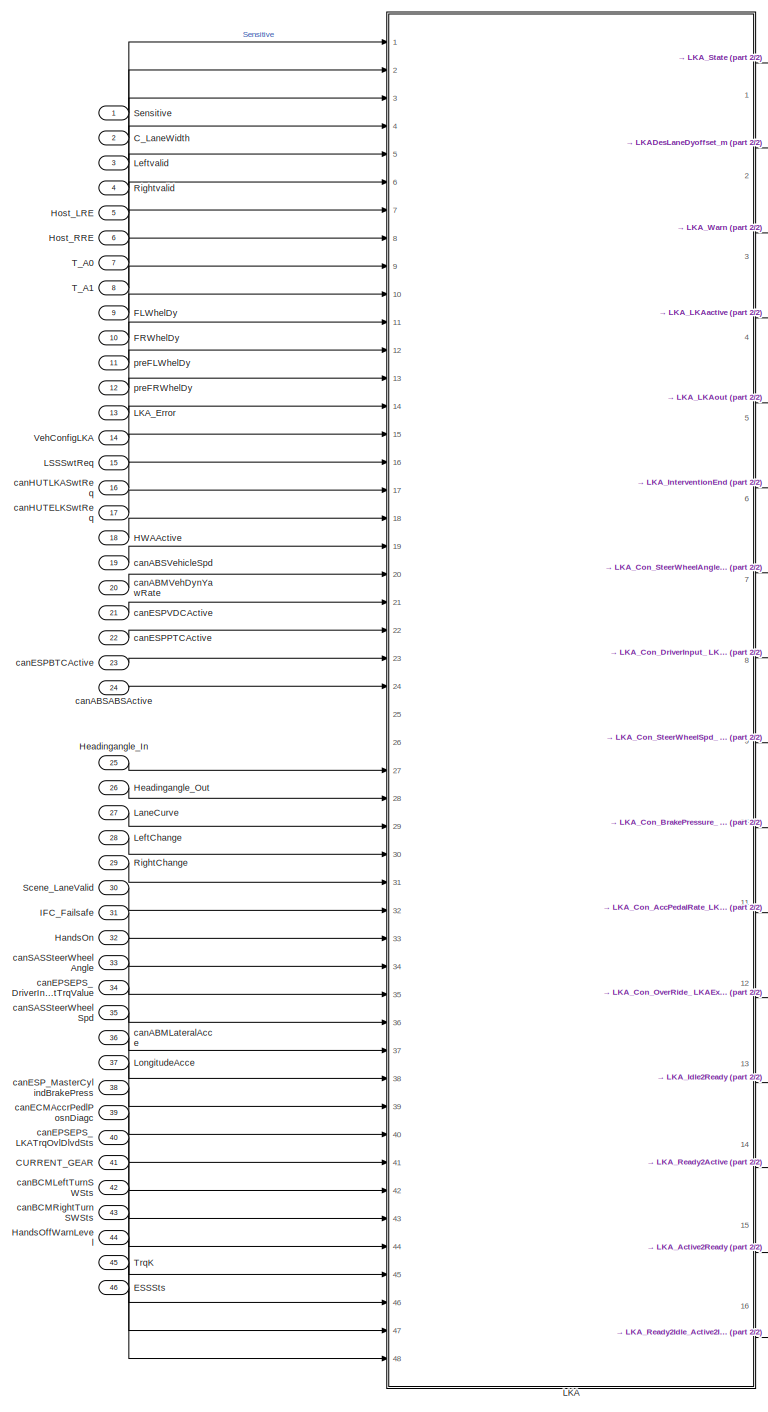
[diagram: root canvas - part 1/2, most of the canvas]
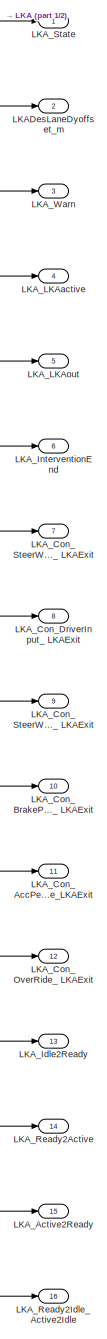
[diagram: root canvas - part 2/2, right side, full height]
MODEL slx_476f28d23ed4
KIND model
CONFIG AbsTol = auto
CONFIG EnableMultiTasking = off
CONFIG FixedStep = auto
CONFIG InitFcn = , if any(exist('dsmpb_private', 'file') ~= 0), dsmpb_private('dsmpb_mdlclblib', 'Init', bdroot); end,\n
CONFIG MaxStep = auto
CONFIG MinStep = auto
CONFIG PostLoadFcn = if any(exist('dsrtsu_mdlpostloadfcn', 'file') ~= 0), dsrtsu_mdlpostloadfcn('Execute', bdroot); end
CONFIG RelTol = 1e-3
CONFIG SampleTimeConstraint = Unconstrained
CONFIG SolverName = FixedStepAuto
CONFIG StartTime = 0.0
CONFIG StopTime = Inf
BLOCK [Inport] CURRENT_GEAR
  OutDataTypeStr = uint8
  Port = 41
BLOCK [Inport] C_LaneWidth
  OutDataTypeStr = single
  Port = 2
BLOCK [Inport] ESSSts
  OutDataTypeStr = uint8
  Port = 46
BLOCK [Inport] FLWhelDy
  OutDataTypeStr = single
  Port = 9
BLOCK [Inport] FRWhelDy
  OutDataTypeStr = single
  Port = 10
BLOCK [Inport] HWAActive
  OutDataTypeStr = boolean
  Port = 18
BLOCK [Inport] HandsOffWarnLevel
  OutDataTypeStr = uint8
  Port = 44
BLOCK [Inport] HandsOn
  OutDataTypeStr = boolean
  Port = 32
BLOCK [Inport] Headingangle_In
  OutDataTypeStr = boolean
  Port = 25
BLOCK [Inport] Headingangle_Out
  OutDataTypeStr = boolean
  Port = 26
BLOCK [Inport] Host_LRE
  OutDataTypeStr = boolean
  Port = 5
BLOCK [Inport] Host_RRE
  OutDataTypeStr = boolean
  Port = 6
BLOCK [Inport] IFC_Failsafe
  OutDataTypeStr = double
  Port = 31
BLOCK [SubSystem] LKA
  Ports = [48, 16]
  ReferencedSubsystem = PvtSubSys_VSM_LKA
  RequestExecContextInheritance = off
BLOCK [Outport] LKADesLaneDyoffset_m
  Port = 2
BLOCK [Outport] LKA_Active2Ready
  Port = 15
BLOCK [Outport] LKA_Con_AccPedalRate_LKAExit
  Port = 11
BLOCK [Outport] LKA_Con_BrakePressure_ LKAExit
  Port = 10
BLOCK [Outport] LKA_Con_DriverInput_ LKAExit
  Port = 8
BLOCK [Outport] LKA_Con_OverRide_ LKAExit
  Port = 12
BLOCK [Outport] LKA_Con_SteerWheelAngle_ LKAExit
  Port = 7
BLOCK [Outport] LKA_Con_SteerWheelSpd_ LKAExit
  Port = 9
BLOCK [Inport] LKA_Error
  OutDataTypeStr = boolean
  Port = 13
BLOCK [Outport] LKA_Idle2Ready
  Port = 13
BLOCK [Outport] LKA_InterventionEnd
  Port = 6
BLOCK [Outport] LKA_LKAactive
  Port = 4
BLOCK [Outport] LKA_LKAout
  Port = 5
BLOCK [Outport] LKA_Ready2Active
  Port = 14
BLOCK [Outport] LKA_Ready2Idle_Active2Idle
  Port = 16
BLOCK [Outport] LKA_State
BLOCK [Outport] LKA_Warn
  Port = 3
BLOCK [Inport] LSSSwtReq
  OutDataTypeStr = boolean
  Port = 15
BLOCK [Inport] LaneCurve
  OutDataTypeStr = single
  Port = 27
BLOCK [Inport] LeftChange
  OutDataTypeStr = boolean
  Port = 28
BLOCK [Inport] Leftvalid
  NameLocation = top
  OutDataTypeStr = boolean
  Port = 3
BLOCK [Inport] LongitudeAcce
  OutDataTypeStr = single
  Port = 37
BLOCK [Inport] RightChange
  NameLocation = right
  OutDataTypeStr = boolean
  Port = 29
BLOCK [Inport] Rightvalid
  OutDataTypeStr = boolean
  Port = 4
BLOCK [Inport] Scene_LaneValid
  OutDataTypeStr = single
  Port = 30
BLOCK [Inport] Sensitive
  OutDataTypeStr = uint8
BLOCK [Inport] T_A0
  OutDataTypeStr = single
  Port = 7
BLOCK [Inport] T_A1
  OutDataTypeStr = single
  Port = 8
BLOCK [Inport] TrqK
  OutDataTypeStr = single
  Port = 45
BLOCK [Inport] VehConfigLKA
  OutDataTypeStr = uint8
  Port = 14
BLOCK [Inport] canABMLateralAcce
  OutDataTypeStr = single
  Port = 36
BLOCK [Inport] canABMVehDynYawRate
  OutDataTypeStr = single
  Port = 20
BLOCK [Inport] canABSABSActive
  OutDataTypeStr = boolean
  Port = 24
BLOCK [Inport] canABSVehicleSpd
  OutDataTypeStr = single
  Port = 19
BLOCK [Inport] canBCMLeftTurnSWSts
  OutDataTypeStr = boolean
  Port = 42
BLOCK [Inport] canBCMRightTurnSWSts
  OutDataTypeStr = boolean
  Port = 43
BLOCK [Inport] canECMAccrPedlPosnDiagc
  OutDataTypeStr = single
  Port = 39
BLOCK [Inport] canEPSEPS_DriverInputTrqValue
  OutDataTypeStr = single
  Port = 34
BLOCK [Inport] canEPSEPS_LKATrqOvlDlvdSts
  OutDataTypeStr = uint8
  Port = 40
BLOCK [Inport] canESPBTCActive
  OutDataTypeStr = boolean
  Port = 23
BLOCK [Inport] canESPPTCActive
  OutDataTypeStr = boolean
  Port = 22
BLOCK [Inport] canESPVDCActive
  OutDataTypeStr = boolean
  Port = 21
BLOCK [Inport] canESP_MasterCylindBrakePress
  OutDataTypeStr = single
  Port = 38
BLOCK [Inport] canHUTELKSwtReq
  OutDataTypeStr = boolean
  Port = 17
BLOCK [Inport] canHUTLKASwtReq
  OutDataTypeStr = boolean
  Port = 16
BLOCK [Inport] canSASSteerWheelAngle
  OutDataTypeStr = single
  Port = 33
BLOCK [Inport] canSASSteerWheelSpd
  OutDataTypeStr = single
  Port = 35
BLOCK [Inport] preFLWhelDy
  OutDataTypeStr = single
  Port = 11
BLOCK [Inport] preFRWhelDy
  OutDataTypeStr = single
  Port = 12
LINE CURRENT_GEAR:1 -> LKA:43
LINE C_LaneWidth:1 -> LKA:2
LINE ESSSts:1 -> LKA:48
LINE FLWhelDy:1 -> LKA:9
LINE FRWhelDy:1 -> LKA:10
LINE HWAActive:1 -> LKA:18
LINE HandsOffWarnLevel:1 -> LKA:46
LINE HandsOn:1 -> LKA:34
LINE Headingangle_In:1 -> LKA:27
LINE Headingangle_Out:1 -> LKA:28
LINE Host_LRE:1 -> LKA:5
LINE Host_RRE:1 -> LKA:6
LINE IFC_Failsafe:1 -> LKA:33
LINE LKA:1 -> LKA_State:1
LINE LKA:10 -> LKA_Con_BrakePressure_ LKAExit:1
LINE LKA:11 -> LKA_Con_AccPedalRate_LKAExit:1
LINE LKA:12 -> LKA_Con_OverRide_ LKAExit:1
LINE LKA:13 -> LKA_Idle2Ready:1
LINE LKA:14 -> LKA_Ready2Active:1
LINE LKA:15 -> LKA_Active2Ready:1
LINE LKA:16 -> LKA_Ready2Idle_Active2Idle:1
LINE LKA:2 -> LKADesLaneDyoffset_m:1
LINE LKA:3 -> LKA_Warn:1
LINE LKA:4 -> LKA_LKAactive:1
LINE LKA:5 -> LKA_LKAout:1
LINE LKA:6 -> LKA_InterventionEnd:1
LINE LKA:7 -> LKA_Con_SteerWheelAngle_ LKAExit:1
LINE LKA:8 -> LKA_Con_DriverInput_ LKAExit:1
LINE LKA:9 -> LKA_Con_SteerWheelSpd_ LKAExit:1
LINE LKA_Error:1 -> LKA:13
LINE LSSSwtReq:1 -> LKA:15
LINE LaneCurve:1 -> LKA:29
LINE LeftChange:1 -> LKA:30
LINE Leftvalid:1 -> LKA:3
LINE LongitudeAcce:1 -> LKA:39
LINE RightChange:1 -> LKA:31
LINE Rightvalid:1 -> LKA:4
LINE Scene_LaneValid:1 -> LKA:32
LINE Sensitive:1 -> LKA:1
LINE T_A0:1 -> LKA:7
LINE T_A1:1 -> LKA:8
LINE TrqK:1 -> LKA:47
LINE VehConfigLKA:1 -> LKA:14
LINE canABMLateralAcce:1 -> LKA:38
LINE canABMVehDynYawRate:1 -> LKA:20
LINE canABSABSActive:1 -> LKA:24
LINE canABSVehicleSpd:1 -> LKA:19
LINE canBCMLeftTurnSWSts:1 -> LKA:44
LINE canBCMRightTurnSWSts:1 -> LKA:45
LINE canECMAccrPedlPosnDiagc:1 -> LKA:41
LINE canEPSEPS_DriverInputTrqValue:1 -> LKA:36
LINE canEPSEPS_LKATrqOvlDlvdSts:1 -> LKA:42
LINE canESPBTCActive:1 -> LKA:23
LINE canESPPTCActive:1 -> LKA:22
LINE canESPVDCActive:1 -> LKA:21
LINE canESP_MasterCylindBrakePress:1 -> LKA:40
LINE canHUTELKSwtReq:1 -> LKA:17
LINE canHUTLKASwtReq:1 -> LKA:16
LINE canSASSteerWheelAngle:1 -> LKA:35
LINE canSASSteerWheelSpd:1 -> LKA:37
LINE preFLWhelDy:1 -> LKA:11
LINE preFRWhelDy:1 -> LKA:12
